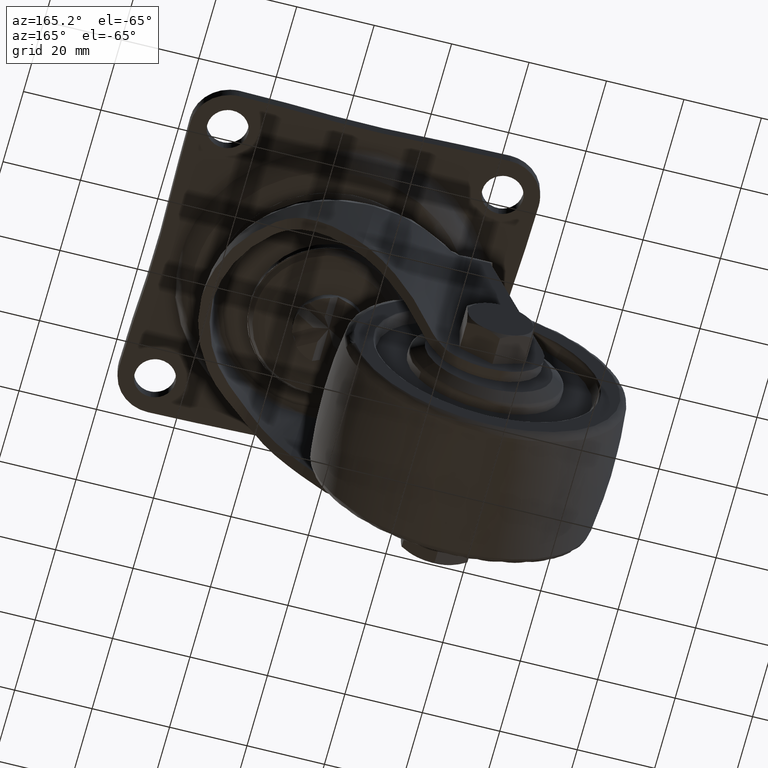
[diagram: clean part render]
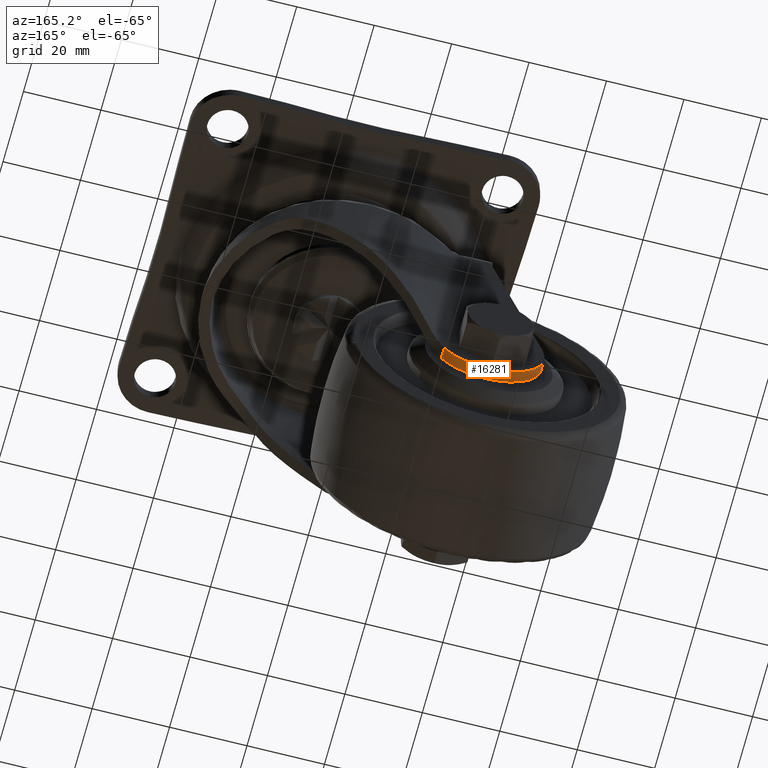
[diagram: same view with one face highlighted and labeled with its STEP entity id]
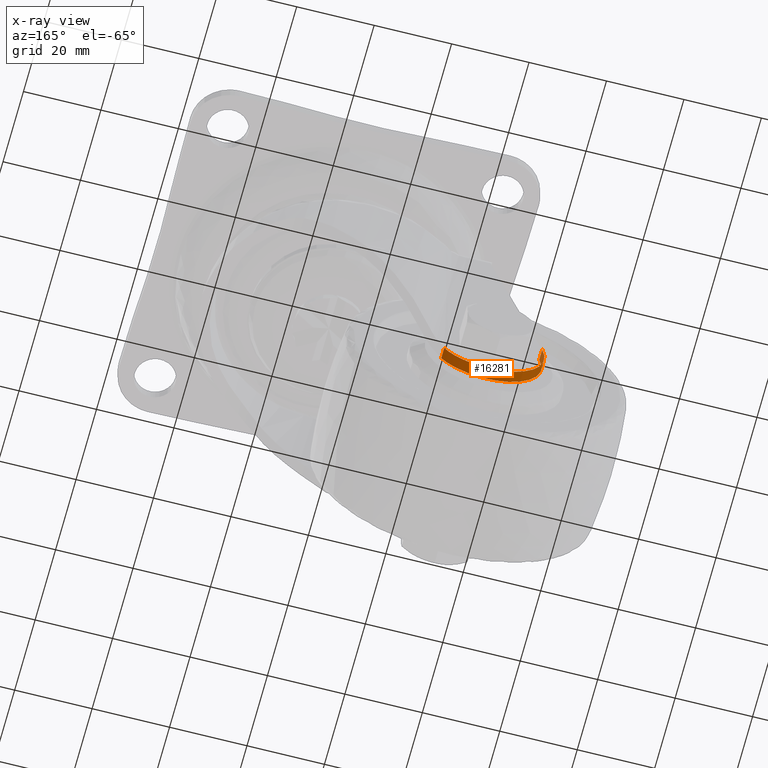
[diagram: x-ray of the same camera — body ghosted, the highlighted face saturated]
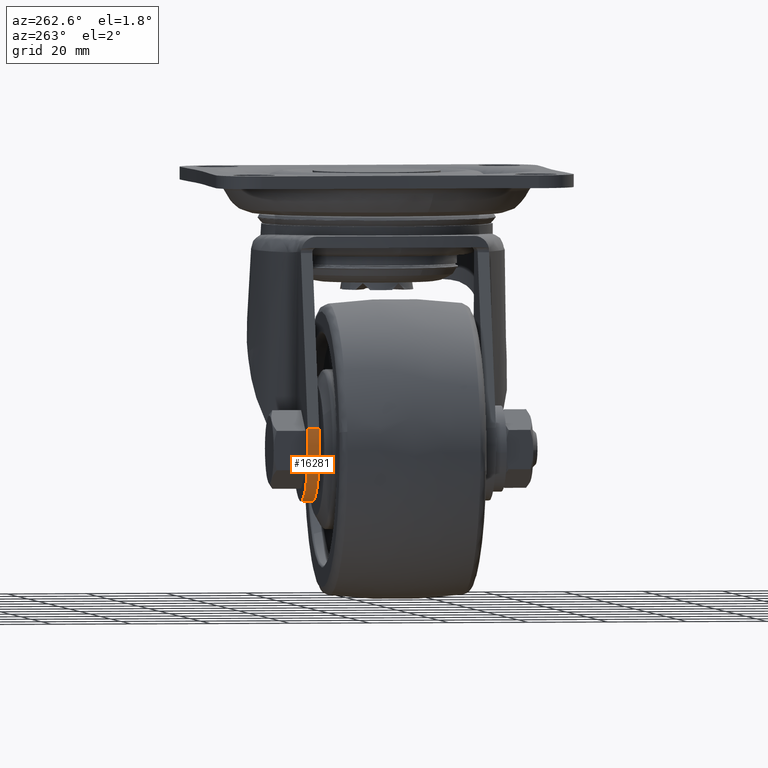
[diagram: same view with one face highlighted and labeled with its STEP entity id]
A machine part, auxiliary view. The second image highlights one B-rep face of the part: STEP entity #16281.
The next image is the same camera in x-ray: the body ghosted, the highlighted face saturated — about 0% of this face is hidden behind the body in this view.
A second angle (auxiliary view) of the same face is appended — the face is thin or edge-on in the first view.
In plain terms, the highlighted face is a freeform B-spline surface patch.
Its self-contained STEP definition (entity closure, byte-faithful):
#15019=CARTESIAN_POINT('',(-24.663195479939951,20.800000000000001,-77.141591542413195));
#15020=VERTEX_POINT('',#15019);
#15050=CARTESIAN_POINT('',(-48.819826391696601,20.800000000000001,-62.887583072230591));
#15051=VERTEX_POINT('',#15050);
#15057=CARTESIAN_POINT('',(-48.819826391696601,20.800000000000001,-62.887583072230591));
#15058=CARTESIAN_POINT('',(-49.069002848799272,20.800000000000001,-63.702512718128247));
#15059=CARTESIAN_POINT('',(-49.443137169179472,20.799999999999990,-65.475143842544227));
#15060=CARTESIAN_POINT('',(-49.498726742917412,20.800000000000079,-68.194773245017686));
#15061=CARTESIAN_POINT('',(-49.057984881683851,20.799999999999930,-70.724455481671896));
#15062=CARTESIAN_POINT('',(-48.288522642254243,20.800000000000171,-72.904703198938577));
#15063=CARTESIAN_POINT('',(-47.257129322939527,20.799999999999891,-74.860982127095824));
#15064=CARTESIAN_POINT('',(-46.052979984053103,20.800000000000040,-76.472973071978117));
#15065=CARTESIAN_POINT('',(-44.715412338095248,20.799999999999979,-77.832857451053030));
#15066=CARTESIAN_POINT('',(-43.308387268411352,20.800000000000029,-78.968438483093266));
#15067=CARTESIAN_POINT('',(-41.415611324564580,20.799999999999940,-80.112160595383301));
#15068=CARTESIAN_POINT('',(-39.449270736204987,20.800000000000178,-80.890049771554104));
#15069=CARTESIAN_POINT('',(-37.494628906603758,20.799999999999681,-81.349186984523342));
#15070=CARTESIAN_POINT('',(-35.399333582091067,20.800000000001031,-81.593722373568980));
#15071=CARTESIAN_POINT('',(-32.932875623620333,20.799999999999560,-81.468546394795496));
#15072=CARTESIAN_POINT('',(-30.637427055702460,20.800000000000079,-80.898032186392371));
#15073=CARTESIAN_POINT('',(-28.822593675872820,20.800000000000018,-80.164033578099492));
#15074=CARTESIAN_POINT('',(-26.837945069858868,20.800000000000001,-79.082587019222331));
#15075=CARTESIAN_POINT('',(-25.465198210473140,20.799999999999979,-77.969912577126479));
#15076=CARTESIAN_POINT('',(-24.663195479939951,20.800000000000001,-77.141591542413195));
#15077=B_SPLINE_CURVE_WITH_KNOTS('',3,(#15057,#15058,#15059,#15060,#15061,#15062,#15063,#15064,#15065,#15066,#15067,#15068,#15069,#15070,#15071,#15072,#15073,#15074,#15075,#15076),.UNSPECIFIED.,.F.,.U.,(4,1,1,1,1,1,1,1,1,1,1,1,1,1,1,1,1,4),(0.000000044397886,2.556522536443488,5.413787067105034,8.120711532544277,10.226099649828010,12.331485579913769,14.737642781451269,16.241450721857682,18.046079988783280,20.151407721282389,22.858280982243251,24.362160139538108,26.166762119773718,29.174446343214839,31.730986826591248,33.234835622621837,35.039426389350822,38.498234249616360),.UNSPECIFIED.);
#15078=EDGE_CURVE('',#15051,#15020,#15077,.T.);
#15214=CARTESIAN_POINT('',(-24.663195479939951,23.699999999999999,-77.141591542413195));
#15215=VERTEX_POINT('',#15214);
#15233=CARTESIAN_POINT('',(-23.518680430933902,23.777926158088249,-75.806004043305705));
#15234=VERTEX_POINT('',#15233);
#15250=CARTESIAN_POINT('',(-24.663195479939901,23.699999999999999,-77.141591542413195));
#15251=CARTESIAN_POINT('',(-24.253696541590170,23.699999999999999,-76.718869192401215));
#15252=CARTESIAN_POINT('',(-23.872380069575492,23.729030512180930,-76.273690042982935));
#15253=CARTESIAN_POINT('',(-23.518680430933902,23.777926158088249,-75.806004043305705));
#15254=QUASI_UNIFORM_CURVE('',3,(#15250,#15251,#15252,#15253),.UNSPECIFIED.,.F.,.U.);
#15255=EDGE_CURVE('',#15215,#15234,#15254,.T.);
#15799=CARTESIAN_POINT('',(-23.518680430933902,20.860313503657899,-75.806004043305705));
#15800=VERTEX_POINT('',#15799);
#15818=CARTESIAN_POINT('',(-23.518680430933902,23.777926158088249,-75.806004043305705));
#15819=CARTESIAN_POINT('',(-23.518680430933902,20.860313503657899,-75.806004043305705));
#15820=QUASI_UNIFORM_CURVE('',1,(#15818,#15819),.UNSPECIFIED.,.F.,.U.);
#15821=EDGE_CURVE('',#15234,#15800,#15820,.T.);
#16050=CARTESIAN_POINT('',(-48.819826391696601,23.699999999999999,-62.887583072230591));
#16051=VERTEX_POINT('',#16050);
#16074=CARTESIAN_POINT('',(-48.819826391696601,23.699999999999999,-62.887583072230591));
#16075=CARTESIAN_POINT('',(-49.069019609334973,23.700000000000010,-63.702510071644781));
#16076=CARTESIAN_POINT('',(-49.380700571604777,23.699999999999999,-65.179715693026722));
#16077=CARTESIAN_POINT('',(-49.505325756957482,23.699999999999999,-67.588154129455802));
#16078=CARTESIAN_POINT('',(-49.223797866983404,23.700000000000049,-70.140469506437924));
#16079=CARTESIAN_POINT('',(-48.429265770996807,23.700000000000099,-72.637976220176796));
#16080=CARTESIAN_POINT('',(-47.257117269168170,23.699999999999910,-74.860977353645595));
#16081=CARTESIAN_POINT('',(-46.052977701832233,23.700000000000021,-76.472972210102085));
#16082=CARTESIAN_POINT('',(-44.715412751969517,23.700000000000021,-77.832857607352096));
#16083=CARTESIAN_POINT('',(-43.308387268407976,23.699999999999989,-78.968438483092683));
#16084=CARTESIAN_POINT('',(-41.415611324566477,23.699999999999960,-80.112160595383642));
#16085=CARTESIAN_POINT('',(-39.449270736204383,23.700000000000191,-80.890049771554018));
#16086=CARTESIAN_POINT('',(-37.494628906603843,23.699999999999640,-81.349186984523357));
#16087=CARTESIAN_POINT('',(-35.399333582091039,23.700000000001172,-81.593722373568966));
#16088=CARTESIAN_POINT('',(-32.932875623620333,23.699999999999491,-81.468546394795496));
#16089=CARTESIAN_POINT('',(-30.637427055702460,23.700000000000099,-80.898032186392371));
#16090=CARTESIAN_POINT('',(-28.822593675872810,23.700000000000010,-80.164033578099492));
#16091=CARTESIAN_POINT('',(-26.837945069858868,23.699999999999982,-79.082587019222302));
#16092=CARTESIAN_POINT('',(-25.465198210473151,23.700000000000010,-77.969912577126578));
#16093=CARTESIAN_POINT('',(-24.663195479939951,23.699999999999999,-77.141591542413195));
#16094=B_SPLINE_CURVE_WITH_KNOTS('',3,(#16074,#16075,#16076,#16077,#16078,#16079,#16080,#16081,#16082,#16083,#16084,#16085,#16086,#16087,#16088,#16089,#16090,#16091,#16092,#16093),.UNSPECIFIED.,.F.,.U.,(4,1,1,1,1,1,1,1,1,1,1,1,1,1,1,1,1,4),(0.000000044397886,2.556522536443488,4.511493668060311,7.218408385074060,10.226099649828010,12.331485579913769,14.737642781451269,16.241450721857682,18.046079988783280,20.151407721282389,22.858280982243251,24.362160139538108,26.166762119773718,29.174446343214839,31.730986826591248,33.234835622621837,35.039426389350822,38.498234249616360),.UNSPECIFIED.);
#16095=EDGE_CURVE('',#16051,#15215,#16094,.T.);
#16237=CARTESIAN_POINT('',(-48.819826391696601,23.699999999999999,-62.887583072230591));
#16238=CARTESIAN_POINT('',(-48.819826391696601,20.800000000000001,-62.887583072230591));
#16239=QUASI_UNIFORM_CURVE('',1,(#16237,#16238),.UNSPECIFIED.,.F.,.U.);
#16240=EDGE_CURVE('',#16051,#15051,#16239,.T.);
#16245=CARTESIAN_POINT('',(-23.293430697047370,23.852374312040460,-75.499862455433842));
#16246=CARTESIAN_POINT('',(-23.293430697047370,20.723690642198989,-75.499862455433842));
#16247=CARTESIAN_POINT('',(-30.591389445943296,23.852374312040457,-85.697420831155483));
#16248=CARTESIAN_POINT('',(-30.591389445943296,20.723690642198981,-85.697420831155483));
#16249=CARTESIAN_POINT('',(-41.705385434311090,23.852374312040460,-79.889711136501148));
#16250=CARTESIAN_POINT('',(-41.705385434311090,20.723690642198989,-79.889711136501148));
#16251=CARTESIAN_POINT('',(-52.819381422678894,23.852374312040457,-74.082001441846813));
#16252=CARTESIAN_POINT('',(-52.819381422678894,20.723690642198981,-74.082001441846813));
#16253=CARTESIAN_POINT('',(-48.614961245300698,23.852374312040460,-62.267889130763393));
#16254=CARTESIAN_POINT('',(-48.614961245300698,20.723690642198989,-62.267889130763393));
#16262=(BOUNDED_SURFACE()B_SPLINE_SURFACE(1,2,((#16245,#16247,#16249,#16251,#16253),(#16246,#16248,#16250,#16252,#16254)),.UNSPECIFIED.,.F.,.F.,.U.)B_SPLINE_SURFACE_WITH_KNOTS((2,2),(3,2,3),(0.0,3.128683669841469),(0.0,21.573990576616460,43.147981153232919),.UNSPECIFIED.)GEOMETRIC_REPRESENTATION_ITEM()RATIONAL_B_SPLINE_SURFACE(((1.0,0.754709580222772,1.0,0.754709580222772,1.0),(1.0,0.754709580222772,1.0,0.754709580222772,1.0)))REPRESENTATION_ITEM('')SURFACE());
#16263=CARTESIAN_POINT('',(-24.663195479939962,20.800000000000001,-77.141591542413181));
#16264=CARTESIAN_POINT('',(-24.460146717118342,20.800000000000001,-76.931985992438172));
#16265=CARTESIAN_POINT('',(-24.262700753795809,20.805568793618878,-76.715448338814326));
#16266=CARTESIAN_POINT('',(-23.975228414371340,20.821148271507070,-76.380018974690557));
#16267=CARTESIAN_POINT('',(-23.880957563815748,20.827546220950460,-76.266541217651124));
#16268=CARTESIAN_POINT('',(-23.696820409674931,20.842419309386500,-76.037878251285846));
#16269=CARTESIAN_POINT('',(-23.606763444716670,20.850903803774131,-75.922473464970338));
#16270=CARTESIAN_POINT('',(-23.518680430933902,20.860313503657942,-75.806004043305705));
#16271=B_SPLINE_CURVE_WITH_KNOTS('',3,(#16263,#16264,#16265,#16266,#16267,#16268,#16269,#16270),.UNSPECIFIED.,.F.,.U.,(4,2,2,4),(0.0,0.500000000000000,0.750000000000000,1.0),.UNSPECIFIED.);
#16272=EDGE_CURVE('',#15020,#15800,#16271,.T.);
#16273=ORIENTED_EDGE('',*,*,#16272,.F.);
#16274=ORIENTED_EDGE('',*,*,#15078,.F.);
#16275=ORIENTED_EDGE('',*,*,#16240,.F.);
#16276=ORIENTED_EDGE('',*,*,#16095,.T.);
#16277=ORIENTED_EDGE('',*,*,#15255,.T.);
#16278=ORIENTED_EDGE('',*,*,#15821,.T.);
#16279=EDGE_LOOP('',(#16273,#16274,#16275,#16276,#16277,#16278));
#16280=FACE_OUTER_BOUND('',#16279,.T.);
#16281=ADVANCED_FACE('',(#16280),#16262,.T.);